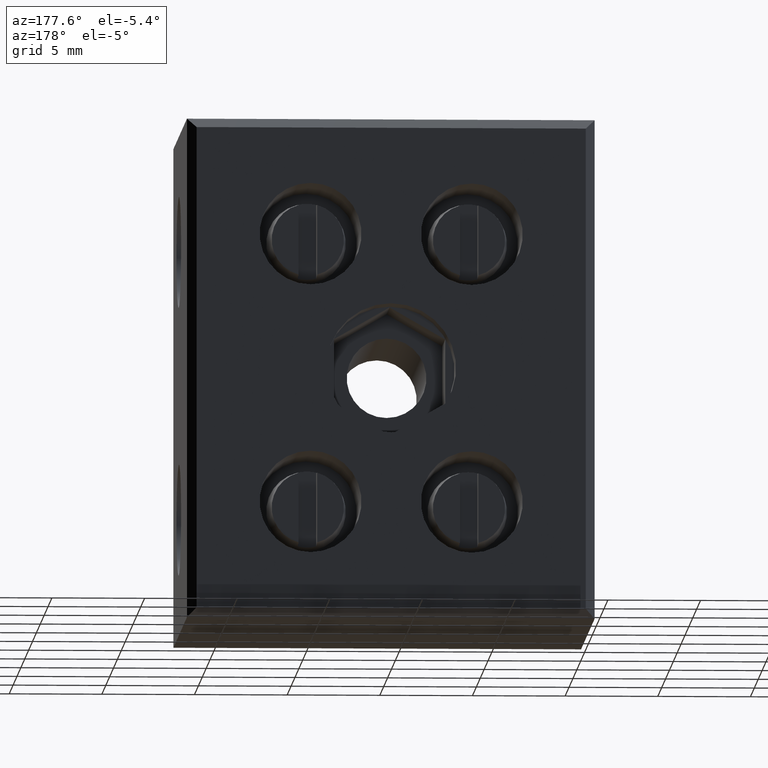
[diagram: clean part render]
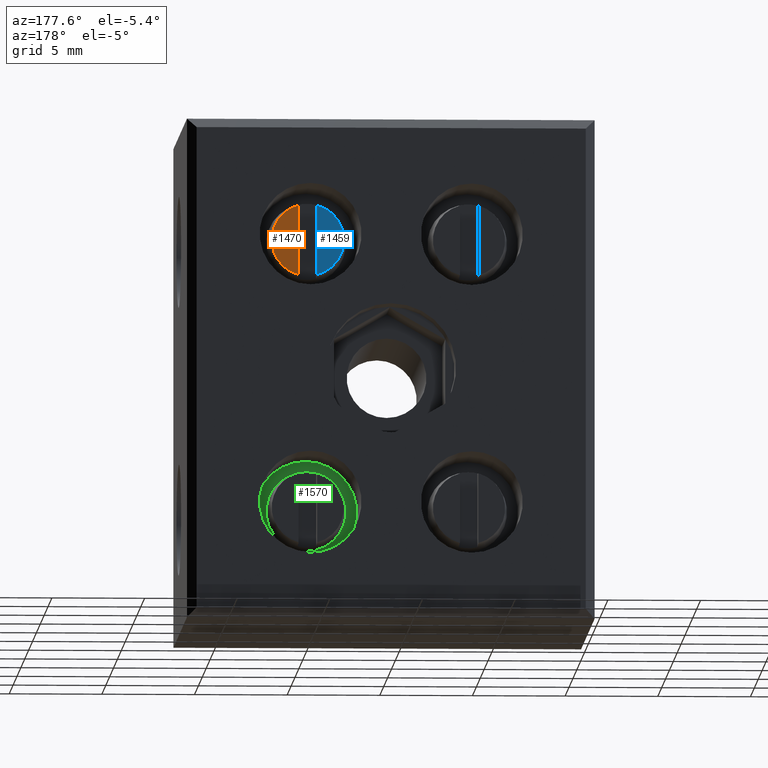
[diagram: same view with three faces highlighted in distinct colors, each labeled with its STEP entity id]
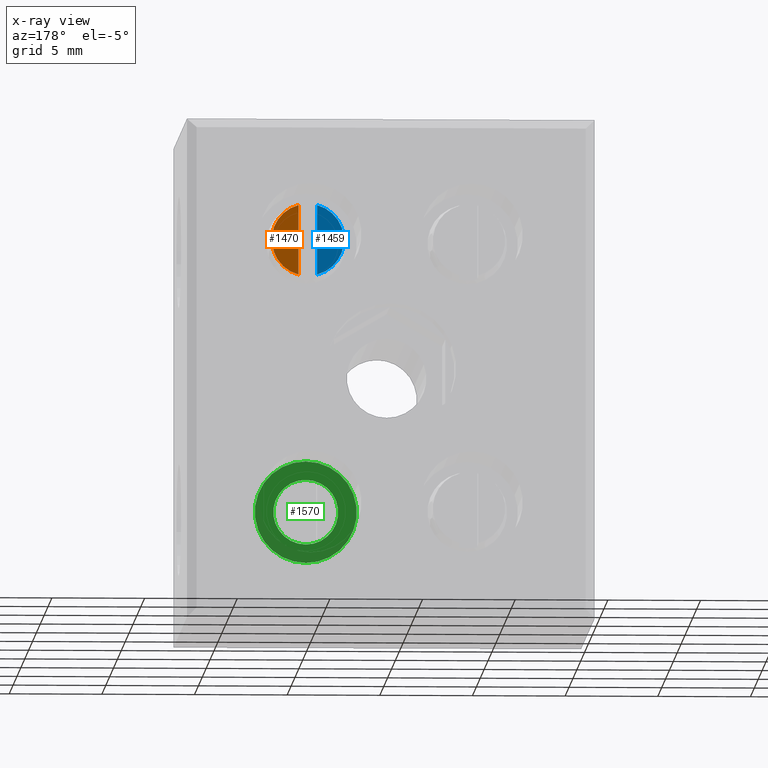
[diagram: x-ray of the same camera — body ghosted, the three highlighted faces saturated]
A machine part, auxiliary view with three faces highlighted in distinct colors.
The next image is the same camera in x-ray (body ghosted, the three faces saturated) — at least one of them is partly hidden behind the body in this view.
Their STEP definitions:

[orange] entity #1470 — the highlighted planar face has unit normal (0, 1, 0).
#598 = DIRECTION ( 'NONE',  ( 0.0000000000000000000, 0.0000000000000000000, -1.000000000000000000 ) ) ;
#599 = CARTESIAN_POINT ( 'NONE',  ( 15.34999999999998900, 14.94942519798314600, -6.250000000000001800 ) ) ;
#626 = DIRECTION ( 'NONE',  ( 0.0000000000000000000, -1.000000000000000000, 0.0000000000000000000 ) ) ;
#817 = LINE ( 'NONE', #861, #3957 ) ;
#861 = CARTESIAN_POINT ( 'NONE',  ( 15.84999999999998900, 14.94942519800339300, -6.250000000000001800 ) ) ;
#882 = DIRECTION ( 'NONE',  ( 0.0000000000000000000, -0.0000000000000000000, 1.000000000000000000 ) ) ;
#1089 = EDGE_CURVE ( 'NONE', #2646, #2695, #3828, .T. ) ;
#1166 = EDGE_CURVE ( 'NONE', #2646, #2695, #817, .T. ) ;
#1470 = ADVANCED_FACE ( 'NONE', ( #4636 ), #4632, .T. ) ;
#2333 = CARTESIAN_POINT ( 'NONE',  ( 15.84999999999998900, 14.94942519799155200, -8.134807682506592000 ) ) ;
#2403 = CARTESIAN_POINT ( 'NONE',  ( 15.84999999999998900, 14.94942519799155000, -4.365192317493412400 ) ) ;
#2646 = VERTEX_POINT ( 'NONE', #2333 ) ;
#2695 = VERTEX_POINT ( 'NONE', #2403 ) ;
#2812 = EDGE_LOOP ( 'NONE', ( #3134, #3137 ) ) ;
#3134 = ORIENTED_EDGE ( 'NONE', *, *, #1166, .T. ) ;
#3137 = ORIENTED_EDGE ( 'NONE', *, *, #1089, .F. ) ;
#3820 = AXIS2_PLACEMENT_3D ( 'NONE', #599, #626, #598 ) ;
#3828 = CIRCLE ( 'NONE', #3820, 1.950000000009926500 ) ;
#3957 = VECTOR ( 'NONE', #882, 1000.000000000000000 ) ;
#4300 = AXIS2_PLACEMENT_3D ( 'NONE', #4633, #4638, #4635 ) ;
#4632 = PLANE ( 'NONE',  #4300 ) ;
#4633 = CARTESIAN_POINT ( 'NONE',  ( 15.34999999999998900, 14.94942519800339300, -6.250000000000001800 ) ) ;
#4635 = DIRECTION ( 'NONE',  ( 0.0000000000000000000, -0.0000000000000000000, 1.000000000000000000 ) ) ;
#4636 = FACE_OUTER_BOUND ( 'NONE', #2812, .T. ) ;
#4638 = DIRECTION ( 'NONE',  ( 0.0000000000000000000, 1.000000000000000000, 0.0000000000000000000 ) ) ;

[blue] entity #1459 — the highlighted planar face has unit normal (0, 1, 0).
#723 = DIRECTION ( 'NONE',  ( 0.0000000000000000000, 0.0000000000000000000, -1.000000000000000000 ) ) ;
#725 = CARTESIAN_POINT ( 'NONE',  ( 14.84999999999999100, 14.94942519800339300, -6.250000000000001800 ) ) ;
#739 = CARTESIAN_POINT ( 'NONE',  ( 15.34999999999998900, 14.94942519798314600, -6.250000000000001800 ) ) ;
#750 = DIRECTION ( 'NONE',  ( 0.0000000000000000000, -1.000000000000000000, 0.0000000000000000000 ) ) ;
#764 = LINE ( 'NONE', #725, #3878 ) ;
#781 = DIRECTION ( 'NONE',  ( -0.0000000000000000000, 0.0000000000000000000, -1.000000000000000000 ) ) ;
#1123 = EDGE_CURVE ( 'NONE', #2694, #2659, #3849, .T. ) ;
#1137 = EDGE_CURVE ( 'NONE', #2694, #2659, #764, .T. ) ;
#1459 = ADVANCED_FACE ( 'NONE', ( #4600 ), #4591, .T. ) ;
#2353 = CARTESIAN_POINT ( 'NONE',  ( 14.84999999999999100, 14.94942519799155200, -8.134807682506593800 ) ) ;
#2409 = CARTESIAN_POINT ( 'NONE',  ( 14.84999999999999100, 14.94942519799155000, -4.365192317493412400 ) ) ;
#2659 = VERTEX_POINT ( 'NONE', #2353 ) ;
#2694 = VERTEX_POINT ( 'NONE', #2409 ) ;
#2800 = EDGE_LOOP ( 'NONE', ( #3138, #3047 ) ) ;
#3047 = ORIENTED_EDGE ( 'NONE', *, *, #1123, .F. ) ;
#3138 = ORIENTED_EDGE ( 'NONE', *, *, #1137, .T. ) ;
#3849 = CIRCLE ( 'NONE', #3853, 1.950000000009926500 ) ;
#3853 = AXIS2_PLACEMENT_3D ( 'NONE', #739, #750, #723 ) ;
#3878 = VECTOR ( 'NONE', #781, 1000.000000000000000 ) ;
#4293 = AXIS2_PLACEMENT_3D ( 'NONE', #4583, #4585, #4603 ) ;
#4583 = CARTESIAN_POINT ( 'NONE',  ( 15.34999999999998900, 14.94942519800339300, -6.250000000000001800 ) ) ;
#4585 = DIRECTION ( 'NONE',  ( 0.0000000000000000000, 1.000000000000000000, 0.0000000000000000000 ) ) ;
#4591 = PLANE ( 'NONE',  #4293 ) ;
#4600 = FACE_OUTER_BOUND ( 'NONE', #2800, .T. ) ;
#4603 = DIRECTION ( 'NONE',  ( 0.0000000000000000000, -0.0000000000000000000, 1.000000000000000000 ) ) ;

[green] entity #1570 — the highlighted planar face has unit normal (0, 1, 0).
#2 = CARTESIAN_POINT ( 'NONE',  ( 15.34999999999999600, 12.27763708963390400, -20.75000000000000000 ) ) ;
#29 = DIRECTION ( 'NONE',  ( 0.0000000000000000000, 1.000000000000000000, 0.0000000000000000000 ) ) ;
#41 = DIRECTION ( 'NONE',  ( 0.0000000000000000000, 0.0000000000000000000, 1.000000000000000000 ) ) ;
#433 = CARTESIAN_POINT ( 'NONE',  ( 15.34999999999999600, 12.27763708963390400, -20.75000000000000000 ) ) ;
#440 = DIRECTION ( 'NONE',  ( 0.0000000000000000000, 0.0000000000000000000, 1.000000000000000000 ) ) ;
#458 = DIRECTION ( 'NONE',  ( 0.0000000000000000000, 1.000000000000000000, 0.0000000000000000000 ) ) ;
#533 = DIRECTION ( 'NONE',  ( -0.0000000000000000000, -1.000000000000000000, -0.0000000000000000000 ) ) ;
#534 = DIRECTION ( 'NONE',  ( 0.0000000000000000000, 0.0000000000000000000, 1.000000000000000000 ) ) ;
#539 = CARTESIAN_POINT ( 'NONE',  ( 15.34999999999998900, 12.27763708963390400, -20.75000000000000000 ) ) ;
#791 = DIRECTION ( 'NONE',  ( -0.0000000000000000000, -1.000000000000000000, -0.0000000000000000000 ) ) ;
#792 = DIRECTION ( 'NONE',  ( 0.0000000000000000000, 0.0000000000000000000, 1.000000000000000000 ) ) ;
#801 = CARTESIAN_POINT ( 'NONE',  ( 15.34999999999998900, 12.27763708963390400, -20.75000000000000000 ) ) ;
#1040 = EDGE_CURVE ( 'NONE', #2610, #2635, #3725, .T. ) ;
#1060 = EDGE_CURVE ( 'NONE', #3554, #2609, #3766, .T. ) ;
#1138 = EDGE_CURVE ( 'NONE', #2609, #3554, #3913, .T. ) ;
#1216 = EDGE_CURVE ( 'NONE', #2635, #2610, #4012, .T. ) ;
#1570 = ADVANCED_FACE ( 'NONE', ( #1966, #1964 ), #1942, .T. ) ;
#1942 = PLANE ( 'NONE',  #3692 ) ;
#1943 = DIRECTION ( 'NONE',  ( 0.0000000000000000000, 1.000000000000000000, 0.0000000000000000000 ) ) ;
#1964 = FACE_OUTER_BOUND ( 'NONE', #2843, .T. ) ;
#1966 = FACE_BOUND ( 'NONE', #2849, .T. ) ;
#1968 = CARTESIAN_POINT ( 'NONE',  ( 4.400000000000000400, 12.27763708963390400, -42.44936753536757800 ) ) ;
#1969 = DIRECTION ( 'NONE',  ( 0.0000000000000000000, -0.0000000000000000000, 1.000000000000000000 ) ) ;
#2272 = CARTESIAN_POINT ( 'NONE',  ( 15.34999999999999600, 12.27763708963390400, -23.50000000000000000 ) ) ;
#2284 = CARTESIAN_POINT ( 'NONE',  ( 15.34999999999998900, 12.27763708963390400, -19.00000000000000000 ) ) ;
#2308 = CARTESIAN_POINT ( 'NONE',  ( 15.34999999999999600, 12.27763708963390400, -18.00000000000000400 ) ) ;
#2522 = CARTESIAN_POINT ( 'NONE',  ( 15.34999999999998900, 12.27763708963390400, -22.50000000000000400 ) ) ;
#2609 = VERTEX_POINT ( 'NONE', #2284 ) ;
#2610 = VERTEX_POINT ( 'NONE', #2272 ) ;
#2635 = VERTEX_POINT ( 'NONE', #2308 ) ;
#2843 = EDGE_LOOP ( 'NONE', ( #3316, #3324 ) ) ;
#2849 = EDGE_LOOP ( 'NONE', ( #3274, #3303 ) ) ;
#3274 = ORIENTED_EDGE ( 'NONE', *, *, #1138, .T. ) ;
#3303 = ORIENTED_EDGE ( 'NONE', *, *, #1060, .T. ) ;
#3316 = ORIENTED_EDGE ( 'NONE', *, *, #1216, .T. ) ;
#3324 = ORIENTED_EDGE ( 'NONE', *, *, #1040, .T. ) ;
#3554 = VERTEX_POINT ( 'NONE', #2522 ) ;
#3692 = AXIS2_PLACEMENT_3D ( 'NONE', #1968, #1943, #1969 ) ;
#3725 = CIRCLE ( 'NONE', #3756, 2.749999999999999100 ) ;
#3750 = AXIS2_PLACEMENT_3D ( 'NONE', #539, #533, #534 ) ;
#3756 = AXIS2_PLACEMENT_3D ( 'NONE', #433, #458, #440 ) ;
#3766 = CIRCLE ( 'NONE', #3750, 1.750000000000001600 ) ;
#3872 = AXIS2_PLACEMENT_3D ( 'NONE', #801, #791, #792 ) ;
#3913 = CIRCLE ( 'NONE', #3872, 1.750000000000001600 ) ;
#4008 = AXIS2_PLACEMENT_3D ( 'NONE', #2, #29, #41 ) ;
#4012 = CIRCLE ( 'NONE', #4008, 2.749999999999999100 ) ;